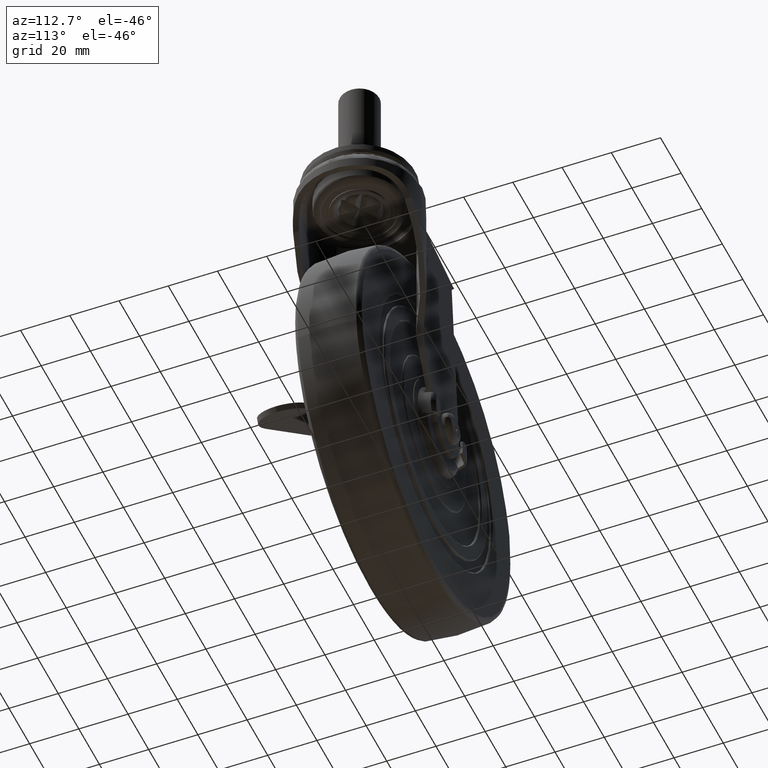
[diagram: clean part render]
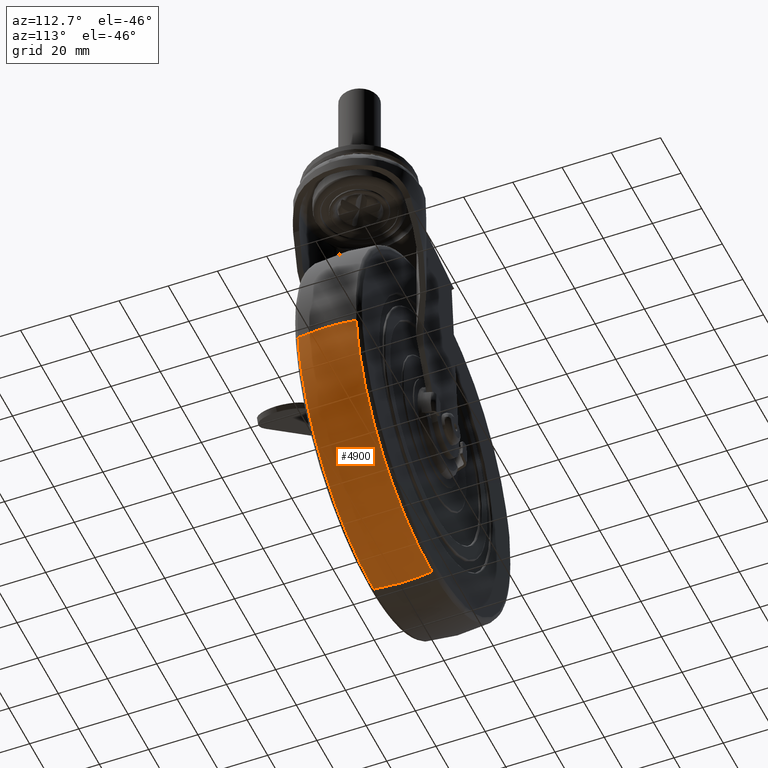
[diagram: same view with one face highlighted and labeled with its STEP entity id]
A machine part, auxiliary view. The second image highlights one B-rep face of the part: STEP entity #4900.
In plain terms, the highlighted face is a freeform B-spline surface patch.
Its self-contained STEP definition (entity closure, byte-faithful):
#4437=CARTESIAN_POINT('',(73.496826248795060,11.838279870516120,-8.543342112623503));
#4438=VERTEX_POINT('',#4437);
#4458=CARTESIAN_POINT('',(0.0,11.838254326075949,-73.991707722818305));
#4459=VERTEX_POINT('',#4458);
#4460=CARTESIAN_POINT('',(0.0,11.838254326075949,-73.991707722818305));
#4461=CARTESIAN_POINT('',(2.523345388587016,11.838254815207449,-73.991735504483188));
#4462=CARTESIAN_POINT('',(8.130815333188727,11.838255951738370,-73.704657089103804));
#4463=CARTESIAN_POINT('',(16.028563067202221,11.838257709442120,-72.390940180771324));
#4464=CARTESIAN_POINT('',(23.996602971333420,11.838259643076290,-70.136961395457107));
#4465=CARTESIAN_POINT('',(32.339375243022232,11.838261836808810,-66.797005187540478));
#4466=CARTESIAN_POINT('',(40.907773721742423,11.838264333601609,-61.954737864863169));
#4467=CARTESIAN_POINT('',(49.476699530380877,11.838267134327751,-55.352325706760517));
#4468=CARTESIAN_POINT('',(56.147444667523899,11.838269609668311,-48.503320743515992));
#4469=CARTESIAN_POINT('',(61.712028071961477,11.838271966924751,-41.096202357351132));
#4470=CARTESIAN_POINT('',(66.568770196104822,11.838274327719700,-32.873705375488463));
#4471=CARTESIAN_POINT('',(71.076033744261380,11.838277086799160,-21.951412708320010));
#4472=CARTESIAN_POINT('',(72.947081571093207,11.838278946682870,-13.277920854283041));
#4473=CARTESIAN_POINT('',(73.496826248795060,11.838279870516120,-8.543342112623503));
#4474=B_SPLINE_CURVE_WITH_KNOTS('',3,(#4460,#4461,#4462,#4463,#4464,#4465,#4466,#4467,#4468,#4469,#4470,#4471,#4472,#4473),.UNSPECIFIED.,.F.,.U.,(4,1,1,1,1,1,1,1,1,1,1,4),(0.000000070667795,7.570052317742920,16.822407547206581,23.971974481246850,32.383199583146997,43.738393176697777,53.411289242987117,64.766374859804060,72.336465926409602,81.168265657644625,93.364567069815081,107.663605292248110),.UNSPECIFIED.);
#4475=EDGE_CURVE('',#4459,#4438,#4474,.T.);
#4631=CARTESIAN_POINT('',(0.0,-11.838242518919550,-73.991709748803032));
#4632=VERTEX_POINT('',#4631);
#4663=CARTESIAN_POINT('',(73.496827004834344,-11.838275480224100,-8.543342132971789));
#4664=VERTEX_POINT('',#4663);
#4665=CARTESIAN_POINT('',(0.0,-11.838242518919550,-73.991709748803032));
#4666=CARTESIAN_POINT('',(3.364489828690315,-11.838243360438350,-73.991853806360766));
#4667=CARTESIAN_POINT('',(9.813021862838735,-11.838245071571579,-73.551067898574658));
#4668=CARTESIAN_POINT('',(20.415345900820370,-11.838248199504250,-71.414006246534839));
#4669=CARTESIAN_POINT('',(29.538509989469809,-11.838251222208150,-68.088322424937431));
#4670=CARTESIAN_POINT('',(38.485936245215854,-11.838254505737449,-63.394283744598752));
#4671=CARTESIAN_POINT('',(44.751037632288082,-11.838257026778519,-59.111341911300819));
#4672=CARTESIAN_POINT('',(51.573460259463012,-11.838260033175651,-53.275191598542243));
#4673=CARTESIAN_POINT('',(57.625007222345083,-11.838262986976151,-46.809513190799720));
#4674=CARTESIAN_POINT('',(63.422491390160687,-11.838266283825361,-38.518367820686528));
#4675=CARTESIAN_POINT('',(67.504673190124123,-11.838269053642520,-30.667155815826071));
#4676=CARTESIAN_POINT('',(71.298070223607979,-11.838272189533219,-20.848113451736879));
#4677=CARTESIAN_POINT('',(72.914958895949141,-11.838274218071801,-13.556490839240960));
#4678=CARTESIAN_POINT('',(73.496827004834344,-11.838275480224100,-8.543342132971789));
#4679=B_SPLINE_CURVE_WITH_KNOTS('',3,(#4665,#4666,#4667,#4668,#4669,#4670,#4671,#4672,#4673,#4674,#4675,#4676,#4677,#4678),.UNSPECIFIED.,.F.,.U.,(4,1,1,1,1,1,1,1,1,1,1,4),(0.000000070947749,10.093462993785440,19.345783551160711,32.383200113858720,39.112204085510058,49.626233940463159,55.093408229435852,66.028029844443665,76.121521415657242,85.373889208589034,92.523428088461515,107.663607056114500),.UNSPECIFIED.);
#4680=EDGE_CURVE('',#4632,#4664,#4679,.T.);
#4848=CARTESIAN_POINT('',(0.0,-11.838242518919550,-73.991709748803032));
#4849=CARTESIAN_POINT('',(0.0,-7.808139889435399,-74.683641697643438));
#4850=CARTESIAN_POINT('',(0.0,0.125705909964205,-75.337389417436498));
#4851=CARTESIAN_POINT('',(0.0,8.052381441555376,-74.641613108862956));
#4852=CARTESIAN_POINT('',(0.0,11.838254326075949,-73.991707722818305));
#4853=B_SPLINE_CURVE_WITH_KNOTS('',3,(#4848,#4849,#4850,#4851,#4852),.UNSPECIFIED.,.F.,.U.,(4,1,4),(5.058919E-009,12.267148645840280,23.790863878914490),.UNSPECIFIED.);
#4854=EDGE_CURVE('',#4632,#4459,#4853,.T.);
#4860=CARTESIAN_POINT('',(73.496827004834344,-11.838275480224100,-8.543342132971789));
#4861=CARTESIAN_POINT('',(74.100675168952108,-8.296644197642697,-8.613534477662617));
#4862=CARTESIAN_POINT('',(74.833546623554113,-0.377094474882831,-8.698724720921577));
#4863=CARTESIAN_POINT('',(74.225807877150316,7.563912967759544,-8.628080161101353));
#4864=CARTESIAN_POINT('',(73.496826248795060,11.838279870516120,-8.543342112623503));
#4865=B_SPLINE_CURVE_WITH_KNOTS('',3,(#4860,#4861,#4862,#4863,#4864),.UNSPECIFIED.,.F.,.U.,(4,1,4),(5.058013E-009,10.780270660801790,23.790923239912999),.UNSPECIFIED.);
#4866=EDGE_CURVE('',#4664,#4438,#4865,.T.);
#4871=CARTESIAN_POINT('',(-0.478690634881200,-13.001275285669466,-73.782024112018206));
#4872=CARTESIAN_POINT('',(-0.494634787400018,0.000003545394335,-76.239544188384698));
#4873=CARTESIAN_POINT('',(-0.478690626485366,13.001282131850164,-73.782022817943130));
#4874=CARTESIAN_POINT('',(-0.239667355772967,-13.001275285669463,-73.782024112018206));
#4875=CARTESIAN_POINT('',(-0.247650158434595,0.000003545394335,-76.239544188384684));
#4876=CARTESIAN_POINT('',(-0.239667351569402,13.001282131850168,-73.782022817943144));
#4877=CARTESIAN_POINT('',(65.702280141965659,-13.001275285669465,-73.782024112018206));
#4878=CARTESIAN_POINT('',(67.890681374585611,0.000003545394335,-76.239544188384684));
#4879=CARTESIAN_POINT('',(65.702278989602533,13.001282131850166,-73.782022817943115));
#4880=CARTESIAN_POINT('',(73.317470953121671,-13.001275285669468,-8.270326607301936));
#4881=CARTESIAN_POINT('',(75.759517765800027,0.000003545394337,-8.545793347611134));
#4882=CARTESIAN_POINT('',(73.317469667194445,13.001282131850173,-8.270326462247313));
#4883=CARTESIAN_POINT('',(73.346330349547273,-13.001275285669466,-8.022055999816509));
#4884=CARTESIAN_POINT('',(75.789338406471245,0.000003545394337,-8.289253381706631));
#4885=CARTESIAN_POINT('',(73.346329063113870,13.001282131850170,-8.022055859116344));
#4893=(BOUNDED_SURFACE()B_SPLINE_SURFACE(2,2,((#4871,#4874,#4877,#4880,#4883),(#4872,#4875,#4878,#4881,#4884),(#4873,#4876,#4879,#4882,#4885)),.UNSPECIFIED.,.F.,.F.,.U.)B_SPLINE_SURFACE_WITH_KNOTS((3,3),(3,1,1,3),(0.0,26.230760638616410),(0.0,0.570988023443807,114.768534749210600,115.339583288164410),.UNSPECIFIED.)GEOMETRIC_REPRESENTATION_ITEM()RATIONAL_B_SPLINE_SURFACE(((0.937587452305726,0.936327626583465,0.683102784298394,0.895811763975647,0.896870129740139),(0.921273749223271,0.920035844040495,0.671217027966612,0.880224943674959,0.881264894234777),(0.937587461048274,0.936327635314266,0.683102790667997,0.895811772328658,0.896870138103019)))REPRESENTATION_ITEM('')SURFACE());
#4894=ORIENTED_EDGE('',*,*,#4475,.T.);
#4895=ORIENTED_EDGE('',*,*,#4866,.F.);
#4896=ORIENTED_EDGE('',*,*,#4680,.F.);
#4897=ORIENTED_EDGE('',*,*,#4854,.T.);
#4898=EDGE_LOOP('',(#4894,#4895,#4896,#4897));
#4899=FACE_OUTER_BOUND('',#4898,.T.);
#4900=ADVANCED_FACE('',(#4899),#4893,.T.);